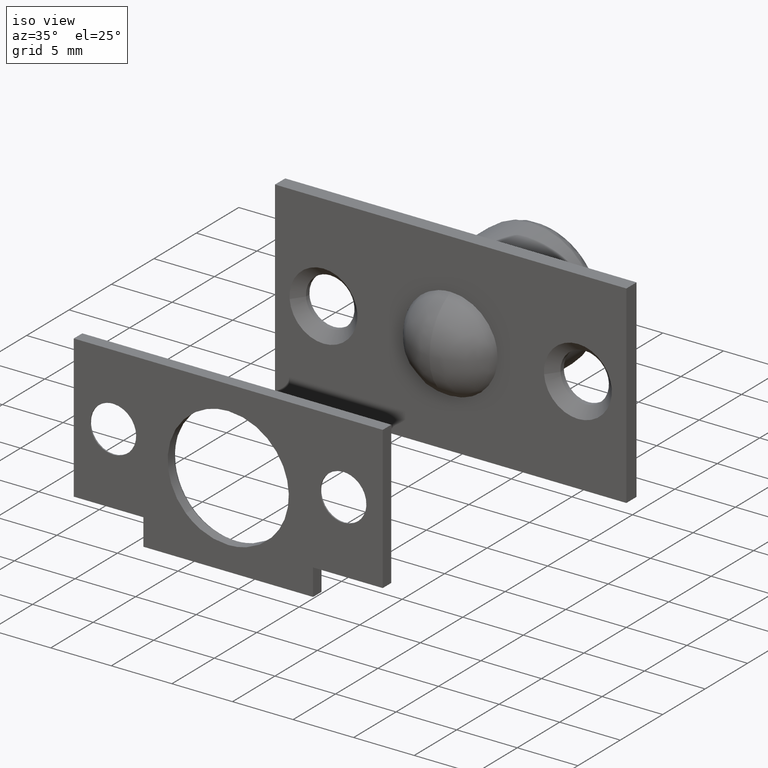
[diagram: clean part render]
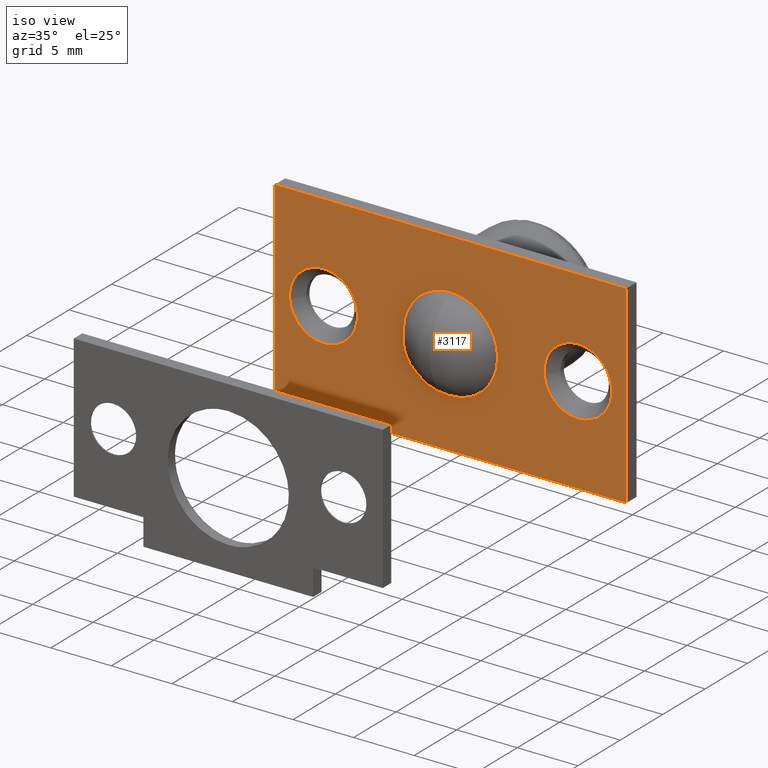
[diagram: same view with one face highlighted and labeled with its STEP entity id]
A machine part, iso view. The second image highlights one B-rep face of the part: STEP entity #3117.
In plain terms, the highlighted face is a freeform B-spline surface patch.
Its self-contained STEP definition (entity closure, byte-faithful):
#1853=CARTESIAN_POINT('',(13.291368534534920,-2.072787E-010,0.219685469635826));
#1854=VERTEX_POINT('',#1853);
#1860=CARTESIAN_POINT('',(10.500000000000000,0.0,2.799999999999997));
#1861=VERTEX_POINT('',#1860);
#1862=CARTESIAN_POINT('',(10.500000000000000,0.0,2.799999999999997));
#1863=CARTESIAN_POINT('',(13.088293373700839,0.0,2.799999999999997));
#1864=CARTESIAN_POINT('',(13.291368534534925,-2.072787E-010,0.219685469635826));
#1872=(BOUNDED_CURVE()B_SPLINE_CURVE(2,(#1862,#1863,#1864),.UNSPECIFIED.,.F.,.U.)B_SPLINE_CURVE_WITH_KNOTS((3,3),(0.0,0.236331300438508),.UNSPECIFIED.)CURVE()GEOMETRIC_REPRESENTATION_ITEM()RATIONAL_B_SPLINE_CURVE((1.0,0.723120658832786,0.969723355766411))REPRESENTATION_ITEM(''));
#1873=EDGE_CURVE('',#1861,#1854,#1872,.T.);
#1875=CARTESIAN_POINT('',(7.708631465465077,-2.072782E-010,-0.219685469635831));
#1876=VERTEX_POINT('',#1875);
#1877=CARTESIAN_POINT('',(7.708631465465077,-2.072782E-010,-0.219685469635831));
#1878=CARTESIAN_POINT('',(7.700000000000000,0.0,-0.110012301210417));
#1879=CARTESIAN_POINT('',(7.700000000000000,0.0,-2.847210E-015));
#1880=CARTESIAN_POINT('',(7.700000000000000,0.0,2.799999999999997));
#1881=CARTESIAN_POINT('',(10.500000000000000,0.0,2.799999999999997));
#1889=(BOUNDED_CURVE()B_SPLINE_CURVE(2,(#1877,#1878,#1879,#1880,#1881),.UNSPECIFIED.,.F.,.U.)B_SPLINE_CURVE_WITH_KNOTS((3,2,3),(0.736331300438507,0.750000000000000,1.0),.UNSPECIFIED.)CURVE()GEOMETRIC_REPRESENTATION_ITEM()RATIONAL_B_SPLINE_CURVE((0.969723355766411,0.983986122353762,1.0,0.707106781186547,1.0))REPRESENTATION_ITEM(''));
#1890=EDGE_CURVE('',#1876,#1861,#1889,.T.);
#1927=CARTESIAN_POINT('',(10.500000000000000,0.0,-2.800000000000003));
#1928=VERTEX_POINT('',#1927);
#1929=CARTESIAN_POINT('',(10.500000000000000,0.0,-2.800000000000003));
#1930=CARTESIAN_POINT('',(7.911706626299153,0.0,-2.800000000000003));
#1931=CARTESIAN_POINT('',(7.708631465465077,-2.072782E-010,-0.219685469635831));
#1939=(BOUNDED_CURVE()B_SPLINE_CURVE(2,(#1929,#1930,#1931),.UNSPECIFIED.,.F.,.U.)B_SPLINE_CURVE_WITH_KNOTS((3,3),(0.500000000000000,0.736331300438508),.UNSPECIFIED.)CURVE()GEOMETRIC_REPRESENTATION_ITEM()RATIONAL_B_SPLINE_CURVE((1.0,0.723120658832785,0.969723355766412))REPRESENTATION_ITEM(''));
#1940=EDGE_CURVE('',#1928,#1876,#1939,.T.);
#1942=CARTESIAN_POINT('',(13.291368534534929,-2.072787E-010,0.219685469635826));
#1943=CARTESIAN_POINT('',(13.300000000000001,0.0,0.110012301210412));
#1944=CARTESIAN_POINT('',(13.300000000000001,0.0,-2.847210E-015));
#1945=CARTESIAN_POINT('',(13.300000000000002,0.0,-2.800000000000003));
#1946=CARTESIAN_POINT('',(10.500000000000000,0.0,-2.800000000000003));
#1954=(BOUNDED_CURVE()B_SPLINE_CURVE(2,(#1942,#1943,#1944,#1945,#1946),.UNSPECIFIED.,.F.,.U.)B_SPLINE_CURVE_WITH_KNOTS((3,2,3),(0.236331300438507,0.250000000000000,0.500000000000000),.UNSPECIFIED.)CURVE()GEOMETRIC_REPRESENTATION_ITEM()RATIONAL_B_SPLINE_CURVE((0.969723355766411,0.983986122353762,1.0,0.707106781186547,1.0))REPRESENTATION_ITEM(''));
#1955=EDGE_CURVE('',#1854,#1928,#1954,.T.);
#2181=CARTESIAN_POINT('',(-7.708631465465077,-2.072780E-010,0.219685469635826));
#2182=VERTEX_POINT('',#2181);
#2188=CARTESIAN_POINT('',(-10.500000000000000,0.0,2.799999999999997));
#2189=VERTEX_POINT('',#2188);
#2190=CARTESIAN_POINT('',(-10.500000000000000,0.0,2.799999999999997));
#2191=CARTESIAN_POINT('',(-7.911706626299162,0.0,2.799999999999997));
#2192=CARTESIAN_POINT('',(-7.708631465465077,-2.072780E-010,0.219685469635826));
#2200=(BOUNDED_CURVE()B_SPLINE_CURVE(2,(#2190,#2191,#2192),.UNSPECIFIED.,.F.,.U.)B_SPLINE_CURVE_WITH_KNOTS((3,3),(0.0,0.236331300438508),.UNSPECIFIED.)CURVE()GEOMETRIC_REPRESENTATION_ITEM()RATIONAL_B_SPLINE_CURVE((1.0,0.723120658832786,0.969723355766411))REPRESENTATION_ITEM(''));
#2201=EDGE_CURVE('',#2189,#2182,#2200,.T.);
#2203=CARTESIAN_POINT('',(-13.291368534534930,-2.072789E-010,-0.219685469635831));
#2204=VERTEX_POINT('',#2203);
#2205=CARTESIAN_POINT('',(-13.291368534534925,-2.072789E-010,-0.219685469635831));
#2206=CARTESIAN_POINT('',(-13.299999999999999,0.0,-0.110012301210417));
#2207=CARTESIAN_POINT('',(-13.300000000000001,0.0,-2.847210E-015));
#2208=CARTESIAN_POINT('',(-13.300000000000002,0.0,2.799999999999997));
#2209=CARTESIAN_POINT('',(-10.500000000000000,0.0,2.799999999999997));
#2217=(BOUNDED_CURVE()B_SPLINE_CURVE(2,(#2205,#2206,#2207,#2208,#2209),.UNSPECIFIED.,.F.,.U.)B_SPLINE_CURVE_WITH_KNOTS((3,2,3),(0.736331300438507,0.750000000000000,1.0),.UNSPECIFIED.)CURVE()GEOMETRIC_REPRESENTATION_ITEM()RATIONAL_B_SPLINE_CURVE((0.969723355766411,0.983986122353762,1.0,0.707106781186547,1.0))REPRESENTATION_ITEM(''));
#2218=EDGE_CURVE('',#2204,#2189,#2217,.T.);
#2255=CARTESIAN_POINT('',(-10.500000000000000,0.0,-2.800000000000003));
#2256=VERTEX_POINT('',#2255);
#2257=CARTESIAN_POINT('',(-10.500000000000000,0.0,-2.800000000000003));
#2258=CARTESIAN_POINT('',(-13.088293373700850,0.0,-2.800000000000003));
#2259=CARTESIAN_POINT('',(-13.291368534534927,-2.072789E-010,-0.219685469635831));
#2267=(BOUNDED_CURVE()B_SPLINE_CURVE(2,(#2257,#2258,#2259),.UNSPECIFIED.,.F.,.U.)B_SPLINE_CURVE_WITH_KNOTS((3,3),(0.500000000000000,0.736331300438508),.UNSPECIFIED.)CURVE()GEOMETRIC_REPRESENTATION_ITEM()RATIONAL_B_SPLINE_CURVE((1.0,0.723120658832785,0.969723355766412))REPRESENTATION_ITEM(''));
#2268=EDGE_CURVE('',#2256,#2204,#2267,.T.);
#2270=CARTESIAN_POINT('',(-7.708631465465077,-2.072780E-010,0.219685469635826));
#2271=CARTESIAN_POINT('',(-7.700000000000000,0.0,0.110012301210411));
#2272=CARTESIAN_POINT('',(-7.700000000000000,0.0,-2.847210E-015));
#2273=CARTESIAN_POINT('',(-7.700000000000000,0.0,-2.800000000000003));
#2274=CARTESIAN_POINT('',(-10.500000000000000,0.0,-2.800000000000003));
#2282=(BOUNDED_CURVE()B_SPLINE_CURVE(2,(#2270,#2271,#2272,#2273,#2274),.UNSPECIFIED.,.F.,.U.)B_SPLINE_CURVE_WITH_KNOTS((3,2,3),(0.236331300438507,0.250000000000000,0.500000000000000),.UNSPECIFIED.)CURVE()GEOMETRIC_REPRESENTATION_ITEM()RATIONAL_B_SPLINE_CURVE((0.969723355766411,0.983986122353762,1.0,0.707106781186547,1.0))REPRESENTATION_ITEM(''));
#2283=EDGE_CURVE('',#2182,#2256,#2282,.T.);
#2899=CARTESIAN_POINT('',(0.0,0.0,3.872983346207412));
#2900=VERTEX_POINT('',#2899);
#2901=CARTESIAN_POINT('',(0.0,0.0,-3.872983346207418));
#2902=VERTEX_POINT('',#2901);
#2903=CARTESIAN_POINT('',(0.0,0.0,3.872983346207412));
#2904=CARTESIAN_POINT('',(3.872983346207414,0.0,3.872983346207412));
#2905=CARTESIAN_POINT('',(3.872983346207415,0.0,-2.847210E-015));
#2906=CARTESIAN_POINT('',(3.872983346207414,0.0,-3.872983346207418));
#2907=CARTESIAN_POINT('',(0.0,0.0,-3.872983346207418));
#2915=(BOUNDED_CURVE()B_SPLINE_CURVE(2,(#2903,#2904,#2905,#2906,#2907),.UNSPECIFIED.,.F.,.U.)B_SPLINE_CURVE_WITH_KNOTS((3,2,3),(0.0,0.250000000000000,0.500000000000000),.UNSPECIFIED.)CURVE()GEOMETRIC_REPRESENTATION_ITEM()RATIONAL_B_SPLINE_CURVE((1.0,0.707106781186548,1.0,0.707106781186548,1.0))REPRESENTATION_ITEM(''));
#2916=EDGE_CURVE('',#2900,#2902,#2915,.T.);
#2918=CARTESIAN_POINT('',(0.0,0.0,-3.872983346207418));
#2919=CARTESIAN_POINT('',(-3.872983346207414,0.0,-3.872983346207418));
#2920=CARTESIAN_POINT('',(-3.872983346207415,0.0,-2.847210E-015));
#2921=CARTESIAN_POINT('',(-3.872983346207414,0.0,3.872983346207412));
#2922=CARTESIAN_POINT('',(0.0,0.0,3.872983346207412));
#2930=(BOUNDED_CURVE()B_SPLINE_CURVE(2,(#2918,#2919,#2920,#2921,#2922),.UNSPECIFIED.,.F.,.U.)B_SPLINE_CURVE_WITH_KNOTS((3,2,3),(0.500000000000000,0.750000000000000,1.0),.UNSPECIFIED.)CURVE()GEOMETRIC_REPRESENTATION_ITEM()RATIONAL_B_SPLINE_CURVE((1.0,0.707106781186548,1.0,0.707106781186548,1.0))REPRESENTATION_ITEM(''));
#2931=EDGE_CURVE('',#2902,#2900,#2930,.T.);
#2962=CARTESIAN_POINT('',(-14.500000000000000,0.0,-8.0));
#2963=VERTEX_POINT('',#2962);
#2969=CARTESIAN_POINT('',(-14.500000000000000,0.0,8.0));
#2970=VERTEX_POINT('',#2969);
#2971=CARTESIAN_POINT('',(-14.500000000000000,0.0,8.0));
#2972=CARTESIAN_POINT('',(-14.500000000000000,0.0,-8.0));
#2973=QUASI_UNIFORM_CURVE('',1,(#2971,#2972),.UNSPECIFIED.,.F.,.U.);
#2974=EDGE_CURVE('',#2970,#2963,#2973,.T.);
#2997=CARTESIAN_POINT('',(14.500000000000000,0.0,8.0));
#2998=VERTEX_POINT('',#2997);
#2999=CARTESIAN_POINT('',(14.500000000000000,0.0,8.0));
#3000=CARTESIAN_POINT('',(-14.500000000000000,0.0,8.0));
#3001=QUASI_UNIFORM_CURVE('',1,(#2999,#3000),.UNSPECIFIED.,.F.,.U.);
#3002=EDGE_CURVE('',#2998,#2970,#3001,.T.);
#3025=CARTESIAN_POINT('',(14.500000000000000,0.0,-8.0));
#3026=VERTEX_POINT('',#3025);
#3027=CARTESIAN_POINT('',(14.500000000000000,0.0,-8.0));
#3028=CARTESIAN_POINT('',(14.500000000000000,0.0,8.0));
#3029=QUASI_UNIFORM_CURVE('',1,(#3027,#3028),.UNSPECIFIED.,.F.,.U.);
#3030=EDGE_CURVE('',#3026,#2998,#3029,.T.);
#3051=CARTESIAN_POINT('',(-14.500000000000000,0.0,-8.0));
#3052=CARTESIAN_POINT('',(14.500000000000000,0.0,-8.0));
#3053=QUASI_UNIFORM_CURVE('',1,(#3051,#3052),.UNSPECIFIED.,.F.,.U.);
#3054=EDGE_CURVE('',#2963,#3026,#3053,.T.);
#3090=CARTESIAN_POINT('',(-15.948549943792379,1.301043E-015,8.799199968988896));
#3091=CARTESIAN_POINT('',(15.948550721632991,1.301043E-015,8.799199968988896));
#3092=CARTESIAN_POINT('',(-15.948549943792379,1.301043E-015,-8.799200398142338));
#3093=CARTESIAN_POINT('',(15.948550721632991,1.301043E-015,-8.799200398142338));
#3094=B_SPLINE_SURFACE_WITH_KNOTS('',1,1,((#3090,#3092),(#3091,#3093)),.UNSPECIFIED.,.F.,.F.,.U.,(2,2),(2,2),(0.0,31.897100665425370),(0.0,17.598400367131230),.UNSPECIFIED.);
#3095=ORIENTED_EDGE('',*,*,#3054,.T.);
#3096=ORIENTED_EDGE('',*,*,#3030,.T.);
#3097=ORIENTED_EDGE('',*,*,#3002,.T.);
#3098=ORIENTED_EDGE('',*,*,#2974,.T.);
#3099=EDGE_LOOP('',(#3095,#3096,#3097,#3098));
#3100=FACE_OUTER_BOUND('',#3099,.T.);
#3101=ORIENTED_EDGE('',*,*,#2916,.T.);
#3102=ORIENTED_EDGE('',*,*,#2931,.T.);
#3103=EDGE_LOOP('',(#3101,#3102));
#3104=FACE_BOUND('',#3103,.T.);
#3105=ORIENTED_EDGE('',*,*,#2268,.T.);
#3106=ORIENTED_EDGE('',*,*,#2218,.T.);
#3107=ORIENTED_EDGE('',*,*,#2201,.T.);
#3108=ORIENTED_EDGE('',*,*,#2283,.T.);
#3109=EDGE_LOOP('',(#3105,#3106,#3107,#3108));
#3110=FACE_BOUND('',#3109,.T.);
#3111=ORIENTED_EDGE('',*,*,#1940,.T.);
#3112=ORIENTED_EDGE('',*,*,#1890,.T.);
#3113=ORIENTED_EDGE('',*,*,#1873,.T.);
#3114=ORIENTED_EDGE('',*,*,#1955,.T.);
#3115=EDGE_LOOP('',(#3111,#3112,#3113,#3114));
#3116=FACE_BOUND('',#3115,.T.);
#3117=ADVANCED_FACE('',(#3100,#3104,#3110,#3116),#3094,.F.);